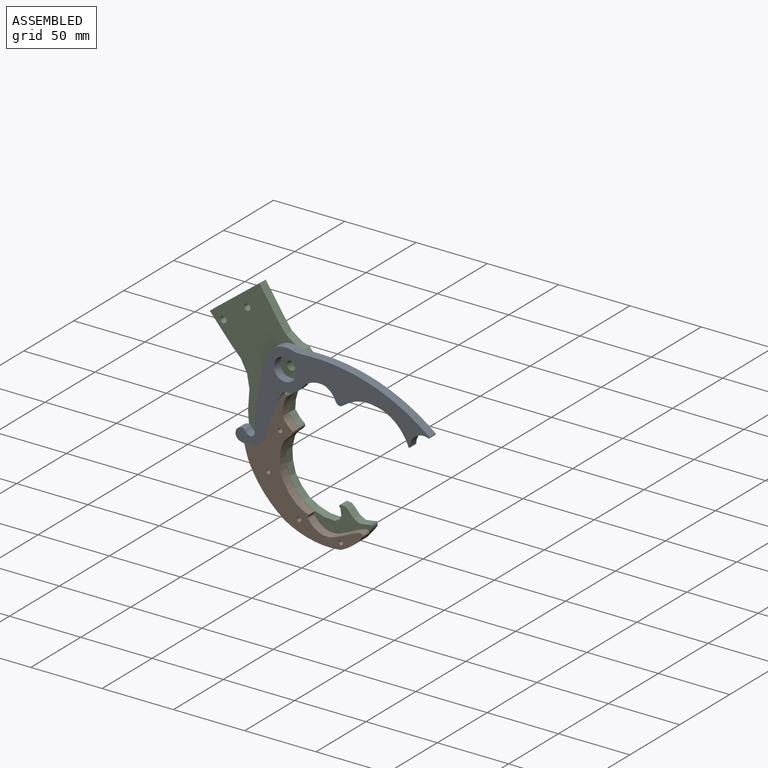
[diagram: assembled view]
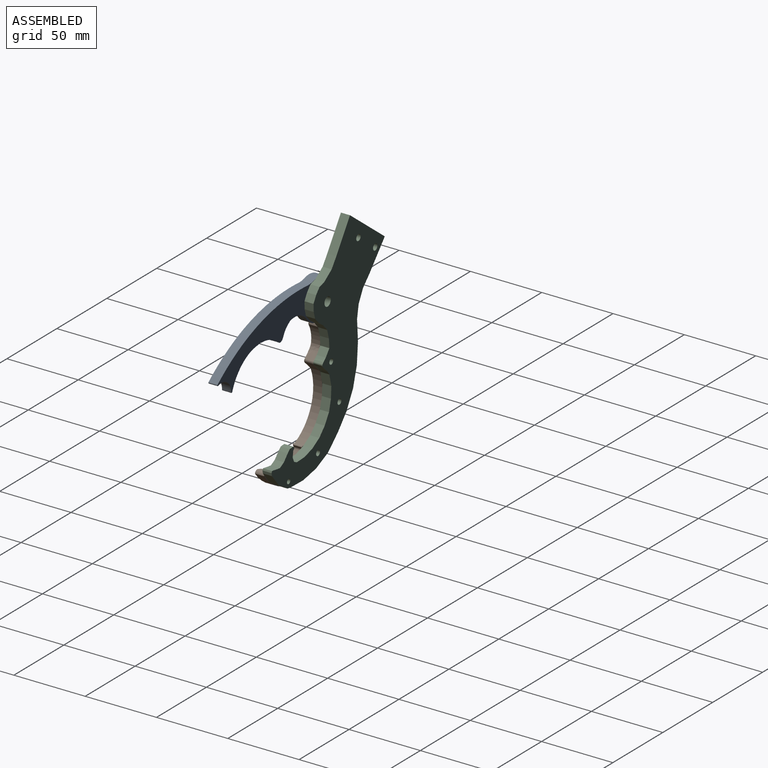
[diagram: assembled view, second angle]
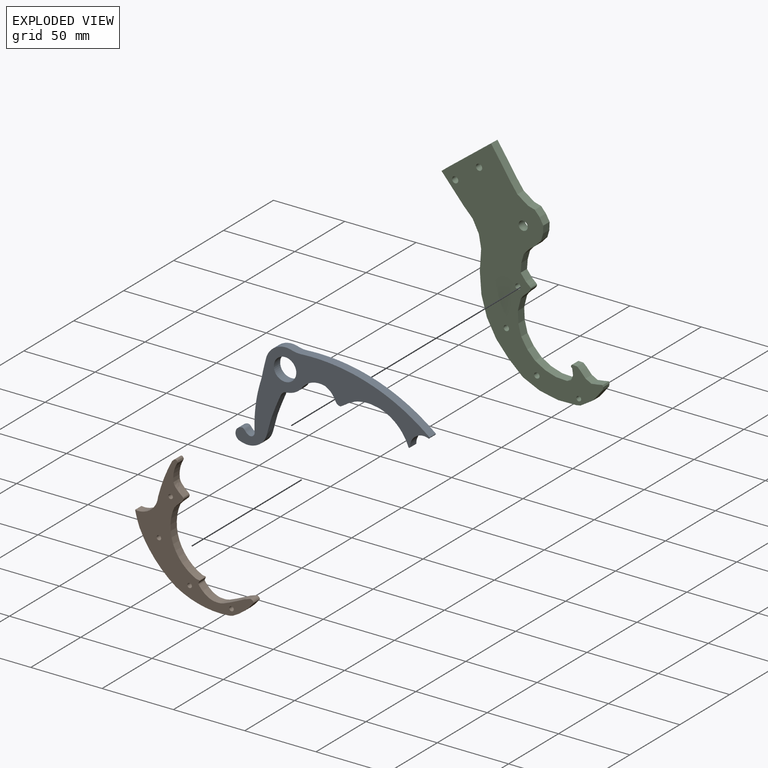
[diagram: exploded view]
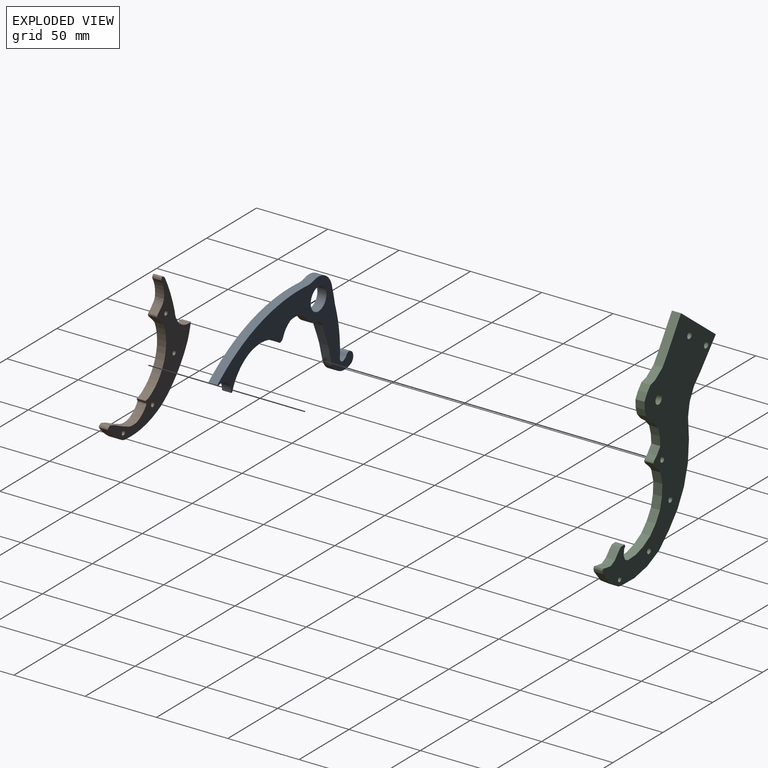
[diagram: exploded view, second angle]
ASSEMBLY  parts=3 mates=2
PART A: 182 faces, bbox 99.9x6.4x117.7 mm
  f0: plane 6.35x0.65mm, normal (0.02,0,1), area 4.1mm2, adj f1,f178,f180,f181
  f1: plane 6.35x0.65mm, normal (-0.12,0,0.99), area 4.1mm2, adj f0,f2,f180,f181
  f2: plane 6.35x0.63mm, normal (-0.25,0,0.97), area 4.2mm2, adj f1,f3,f180,f181
  f3: plane 6.35x0.59mm, normal (-0.4,0,0.92), area 4.1mm2, adj f2,f4,f180,f181
  f4: plane 6.35x0.56mm, normal (-0.51,0,0.86), area 4.1mm2, adj f3,f5,f180,f181
  f5: plane 6.35x0.51mm, normal (-0.62,0,0.78), area 4.2mm2, adj f4,f6,f180,f181
  f6: plane 6.35x0.47mm, normal (-0.73,0,0.68), area 4.1mm2, adj f5,f7,f180,f181
  f7: plane 6.35x0.53mm, normal (-0.81,0,0.58), area 4.1mm2, adj f6,f8,f180,f181
  f8: plane 6.35x0.59mm, normal (-0.9,0,0.44), area 4.2mm2, adj f7,f9,f180,f181
  f9: plane 6.35x0.6mm, normal (-0.94,0,0.33), area 4.1mm2, adj f8,f10,f180,f181
  f10: plane 6.35x0.63mm, normal (-0.98,0,0.21), area 4.1mm2, adj f9,f11,f180,f181
  f11: plane 6.35x0.65mm, normal (-1,0,0.05), area 4.1mm2, adj f10,f12,f180,f181
  f12: plane 6.35x0.65mm, normal (-1,0,-0.09), area 4.1mm2, adj f11,f13,f180,f181
  f13: plane 6.35x0.63mm, normal (-0.97,0,-0.23), area 4.1mm2, adj f12,f14,f180,f181
  f14: plane 6.35x0.6mm, normal (-0.93,0,-0.37), area 4.1mm2, adj f13,f15,f180,f181
  f15: plane 6.35x0.57mm, normal (-0.88,0,-0.48), area 4.2mm2, adj f14,f16,f180,f181
  f16: plane 6.35x0.51mm, normal (-0.79,0,-0.61), area 4.1mm2, adj f15,f17,f180,f181
  f17: plane 6.35x0.45mm, normal (-0.71,0,-0.71), area 4.1mm2, adj f16,f18,f180,f181
  f18: plane 6.35x0.51mm, normal (-0.43,0,-0.9), area 3.6mm2, adj f17,f19,f180,f181
  f19: plane 6.35x0.54mm, normal (-0.24,0,-0.97), area 3.6mm2, adj f18,f20,f180,f181
  f20: plane 6.35x0.56mm, normal (-0.03,0,-1), area 3.5mm2, adj f19,f21,f180,f181
  f21: plane 6.35x0.56mm, normal (0.16,0,-0.99), area 3.6mm2, adj f20,f22,f180,f181
  f22: plane 6.35x0.74mm, normal (0.18,0,-0.98), area 4.8mm2, adj f21,f23,f180,f181
  f23: plane 6.35x0.75mm, normal (0.1,0,-1), area 4.8mm2, adj f22,f24,f180,f181
  f24: plane 6.35x0.75mm, normal (-0.02,0,-1), area 4.8mm2, adj f23,f25,f180,f181
  f25: plane 6.35x0.75mm, normal (-0.12,0,-0.99), area 4.8mm2, adj f24,f26,f180,f181
  f26: plane 6.35x0.74mm, normal (-0.22,0,-0.98), area 4.8mm2, adj f25,f27,f180,f181
  f27: plane 6.35x0.47mm, normal (-0.39,0,-0.92), area 3.2mm2, adj f26,f28,f180,f181
  f28: plane 6.35x0.42mm, normal (-0.54,0,-0.84), area 3.2mm2, adj f27,f29,f180,f181
  f29: plane 6.35x0.36mm, normal (-0.69,0,-0.72), area 3.2mm2, adj f28,f30,f180,f181
  f30: plane 6.35x0.41mm, normal (-0.8,0,-0.6), area 3.2mm2, adj f29,f31,f180,f181
  f31: plane 6.35x0.45mm, normal (-0.89,0,-0.45), area 3.2mm2, adj f30,f32,f180,f181
  f32: plane 6.35x0.48mm, normal (-0.95,0,-0.3), area 3.2mm2, adj f31,f33,f180,f181
  f33: plane 6.35x0.5mm, normal (-1,0,-0.09), area 3.2mm2, adj f32,f34,f180,f181
  f34: plane 6.35x0.5mm, normal (-1,0,0.06), area 3.2mm2, adj f33,f35,f180,f181
  f35: plane 6.35x0.5mm, normal (-0.97,0,0.24), area 3.3mm2, adj f34,f36,f180,f181
  f36: plane 6.35x0.45mm, normal (-0.92,0,0.4), area 3.1mm2, adj f35,f37,f180,f181
  f37: plane 6.35x0.42mm, normal (-0.83,0,0.56), area 3.2mm2, adj f36,f38,f180,f181
  f38: plane 6.35x0.36mm, normal (-0.72,0,0.69), area 3.2mm2, adj f37,f39,f180,f181
  f39: plane 6.35x2.38mm, normal (-0.72,0,0.69), area 20.9mm2, adj f38,f40,f180,f181
  f40: plane 6.35x2.46mm, normal (-0.74,0,0.67), area 21mm2, adj f39,f41,f180,f181
  f41: plane 6.35x2.52mm, normal (-0.76,0,0.65), area 20.9mm2, adj f40,f42,f180,f181
  f42: plane 6.35x2.59mm, normal (-0.79,0,0.62), area 20.9mm2, adj f41,f43,f180,f181
  f43: plane 6.35x2.67mm, normal (-0.81,0,0.59), area 21mm2, adj f42,f44,f180,f181
  f44: plane 6.35x2.73mm, normal (-0.82,0,0.57), area 21mm2, adj f43,f45,f180,f181
  f45: plane 6.35x2.78mm, normal (-0.84,0,0.54), area 20.9mm2, adj f44,f46,f180,f181
  f46: plane 6.35x2.85mm, normal (-0.86,0,0.51), area 21mm2, adj f45,f47,f180,f181
  f47: plane 6.35x2.9mm, normal (-0.88,0,0.48), area 21mm2, adj f46,f48,f180,f181
  f48: plane 6.35x2.94mm, normal (-0.89,0,0.45), area 20.9mm2, adj f47,f49,f180,f181
  f49: plane 6.35x3mm, normal (-0.91,0,0.42), area 21mm2, adj f48,f50,f180,f181
  f50: plane 6.35x3.79mm, normal (-0.86,0,0.51), area 28mm2, adj f49,f51,f180,f181
  f51: plane 6.35x3.85mm, normal (-0.87,0,0.49), area 28mm2, adj f50,f52,f180,f181
  f52: plane 6.35x3.89mm, normal (-0.88,0,0.47), area 27.9mm2, adj f51,f53,f180,f181
  f53: plane 6.35x1.06mm, normal (-0.89,0,0.45), area 7.5mm2, adj f52,f54,f180,f181
  f54: plane 6.35x1.12mm, normal (-0.93,0,0.38), area 7.6mm2, adj f53,f55,f180,f181
  f55: plane 6.35x1.13mm, normal (-0.95,0,0.3), area 7.5mm2, adj f54,f56,f180,f181
  f56: plane 6.35x1.16mm, normal (-0.98,0,0.22), area 7.6mm2, adj f55,f57,f180,f181
  f57: plane 6.35x1.19mm, normal (-0.99,0,0.13), area 7.6mm2, adj f56,f58,f180,f181
  f58: plane 6.35x1.19mm, normal (-1,0,0.05), area 7.6mm2, adj f57,f59,f180,f181
  f59: plane 6.35x1.19mm, normal (-1,0,-0.03), area 7.6mm2, adj f58,f60,f180,f181
  f60: plane 6.35x1.18mm, normal (-0.99,0,-0.13), area 7.5mm2, adj f59,f61,f180,f181
  f61: plane 6.35x1.18mm, normal (-0.98,0,-0.2), area 7.6mm2, adj f60,f62,f180,f181
  f62: plane 6.35x1.15mm, normal (-0.96,0,-0.28), area 7.6mm2, adj f61,f63,f180,f181
  f63: plane 6.35x1.1mm, normal (-0.93,0,-0.36), area 7.5mm2, adj f62,f64,f180,f181
  f64: plane 6.35x1.07mm, normal (-0.9,0,-0.44), area 7.6mm2, adj f63,f65,f180,f181
  f65: plane 6.35x1.03mm, normal (-0.86,0,-0.52), area 7.6mm2, adj f64,f66,f180,f181
  f66: plane 6.35x0.97mm, normal (-0.81,0,-0.58), area 7.5mm2, adj f65,f67,f180,f181
  f67: plane 6.35x0.92mm, normal (-0.77,0,-0.64), area 7.6mm2, adj f66,f68,f180,f181
  f68: plane 6.35x0.84mm, normal (-0.7,0,-0.71), area 7.5mm2, adj f67,f69,f180,f181
  f69: plane 6.35x0.92mm, normal (-0.64,0,-0.77), area 7.6mm2, adj f68,f70,f180,f181
  f70: plane 6.35x0.97mm, normal (-0.58,0,-0.82), area 7.5mm2, adj f69,f71,f180,f181
  f71: plane 6.35x1.03mm, normal (-0.51,0,-0.86), area 7.6mm2, adj f70,f72,f180,f181
  f72: plane 6.35x1.09mm, normal (-0.43,0,-0.9), area 7.6mm2, adj f71,f73,f180,f181
  f73: plane 6.35x1.28mm, normal (-0.48,0,-0.88), area 9.3mm2, adj f72,f74,f180,f181
  f74: plane 6.35x1.22mm, normal (-0.54,0,-0.84), area 9.2mm2, adj f73,f75,f180,f181
  f75: plane 6.35x1.16mm, normal (-0.61,0,-0.79), area 9.4mm2, adj f74,f76,f180,f181
  f76: plane 6.35x1.09mm, normal (-0.67,0,-0.74), area 9.3mm2, adj f75,f77,f180,f181
  f77: plane 6.35x2.66mm, normal (-0.71,0,-0.71), area 23.8mm2, adj f76,f78,f180,f181
  f78: plane 6.35x2.72mm, normal (-0.69,0,-0.72), area 23.8mm2, adj f77,f79,f180,f181
  f79: plane 6.35x2.79mm, normal (-0.67,0,-0.74), area 23.8mm2, adj f78,f80,f180,f181
  f80: plane 6.35x2.87mm, normal (-0.65,0,-0.76), area 23.9mm2, adj f79,f81,f180,f181
  f81: plane 6.35x2.93mm, normal (-0.62,0,-0.78), area 23.8mm2, adj f80,f82,f180,f181
  f82: plane 6.35x3mm, normal (-0.6,0,-0.8), area 23.8mm2, adj f81,f83,f180,f181
  f83: plane 6.35x3.06mm, normal (-0.58,0,-0.82), area 23.8mm2, adj f82,f84,f180,f181
  f84: plane 6.35x3.11mm, normal (-0.56,0,-0.83), area 23.7mm2, adj f83,f85,f180,f181
  f85: plane 6.35x3.18mm, normal (-0.53,0,-0.85), area 23.8mm2, adj f84,f86,f180,f181
  f86: plane 6.35x3.23mm, normal (-0.51,0,-0.86), area 23.8mm2, adj f85,f87,f180,f181
  f87: plane 6.35x3.29mm, normal (-0.48,0,-0.88), area 23.8mm2, adj f86,f88,f180,f181
  f88: plane 6.35x3.33mm, normal (-0.46,0,-0.89), area 23.8mm2, adj f87,f89,f180,f181
  f89: plane 6.35x3.39mm, normal (-0.43,0,-0.9), area 23.9mm2, adj f88,f90,f180,f181
  f90: plane 6.35x3.42mm, normal (-0.41,0,-0.91), area 23.8mm2, adj f89,f91,f180,f181
  f91: plane 6.35x3.47mm, normal (-0.38,0,-0.93), area 23.8mm2, adj f90,f92,f180,f181
  f92: plane 6.35x3.51mm, normal (-0.35,0,-0.94), area 23.9mm2, adj f91,f93,f180,f181
  f93: plane 6.35x3.54mm, normal (-0.32,0,-0.95), area 23.8mm2, adj f92,f94,f180,f181
  f94: plane 6.35x3.58mm, normal (-0.3,0,-0.95), area 23.8mm2, adj f93,f95,f180,f181
  f95: plane 6.48x6.35mm, normal (-0.26,0,-0.97), area 42.5mm2, adj f94,f96,f180,f181
  f96: plane 6.35x3.67mm, normal (-0.22,0,-0.98), area 23.8mm2, adj f95,f97,f180,f181
  f97: plane 6.35x3.68mm, normal (-0.19,0,-0.98), area 23.8mm2, adj f96,f98,f180,f181
  f98: plane 6.35x3.71mm, normal (-0.16,0,-0.99), area 23.9mm2, adj f97,f99,f180,f181
  f99: plane 6.35x3.71mm, normal (-0.13,0,-0.99), area 23.8mm2, adj f98,f100,f180,f181
  f100: plane 6.35x3.73mm, normal (-0.1,0,-0.99), area 23.8mm2, adj f99,f101,f180,f181
  f101: plane 6.35x3.74mm, normal (-0.07,0,-1), area 23.8mm2, adj f100,f102,f180,f181
  f102: plane 6.35x0.24mm, normal (-0.06,0,-1), area 1.5mm2, adj f101,f103,f180,f181
  f103: plane 6.35x0.23mm, normal (0.37,0,-0.93), area 1.5mm2, adj f102,f104,f180,f181
  f104: plane 6.35x0.17mm, normal (0.71,0,-0.71), area 1.5mm2, adj f103,f105,f180,f181
  f105: plane 6.35x0.21mm, normal (0.92,0,-0.39), area 1.5mm2, adj f104,f106,f180,f181
  f106: plane 6.35x0.24mm, normal (1,0,0), area 1.5mm2, adj f105,f107,f180,f181
  f107: plane 6.35x0.21mm, normal (0.92,0,0.39), area 1.5mm2, adj f106,f108,f180,f181
  f108: plane 6.35x0.17mm, normal (0.71,0,0.71), area 1.5mm2, adj f107,f109,f180,f181
  f109: plane 6.35x0.91mm, normal (0.4,0,0.92), area 6.3mm2, adj f108,f110,f180,f181
  f110: plane 6.35x0.84mm, normal (0.51,0,0.86), area 6.2mm2, adj f109,f111,f180,f181
  f111: plane 6.35x0.8mm, normal (0.58,0,0.81), area 6.2mm2, adj f110,f112,f180,f181
  f112: plane 6.35x0.74mm, normal (0.66,0,0.75), area 6.2mm2, adj f111,f113,f180,f181
  f113: plane 6.35x0.72mm, normal (0.74,0,0.68), area 6.2mm2, adj f112,f114,f180,f181
  f114: plane 6.35x0.78mm, normal (0.8,0,0.6), area 6.2mm2, adj f113,f115,f180,f181
  f115: plane 6.35x0.84mm, normal (0.86,0,0.51), area 6.2mm2, adj f114,f116,f180,f181
  f116: plane 6.35x0.89mm, normal (0.91,0,0.42), area 6.2mm2, adj f115,f117,f180,f181
  f117: plane 6.35x0.94mm, normal (0.95,0,0.32), area 6.3mm2, adj f116,f118,f180,f181
  f118: plane 6.35x0.95mm, normal (0.97,0,0.23), area 6.2mm2, adj f117,f119,f180,f181
  f119: plane 6.35x0.98mm, normal (0.99,0,0.12), area 6.3mm2, adj f118,f120,f180,f181
  f120: plane 6.35x0.98mm, normal (1,0,0.02), area 6.2mm2, adj f119,f121,f180,f181
  f121: plane 6.35x0.98mm, normal (1,0,-0.08), area 6.2mm2, adj f120,f122,f180,f181
  f122: plane 6.35x0.97mm, normal (0.98,0,-0.18), area 6.2mm2, adj f121,f123,f180,f181
  f123: plane 6.35x0.94mm, normal (0.96,0,-0.29), area 6.2mm2, adj f122,f124,f180,f181
  f124: plane 6.35x0.91mm, normal (0.93,0,-0.37), area 6.2mm2, adj f123,f125,f180,f181
  f125: plane 6.35x0.86mm, normal (0.88,0,-0.48), area 6.2mm2, adj f124,f126,f180,f181
  f126: plane 6.35x0.81mm, normal (0.82,0,-0.57), area 6.3mm2, adj f125,f127,f180,f181
  f127: plane 6.35x0.75mm, normal (0.77,0,-0.64), area 6.3mm2, adj f126,f128,f180,f181
  f128: plane 6.35x0.23mm, normal (0.93,0,-0.37), area 1.5mm2, adj f127,f129,f180,f181
  f129: plane 6.35x0.24mm, normal (1,0,0), area 1.5mm2, adj f128,f130,f180,f181
  f130: plane 6.35x0.21mm, normal (0.92,0,0.39), area 1.5mm2, adj f129,f131,f180,f181
  f131: plane 6.35x0.18mm, normal (0.68,0,0.74), area 1.6mm2, adj f130,f132,f180,f181
  f132: plane 6.35x0.24mm, normal (0.3,0,0.95), area 1.6mm2, adj f131,f133,f180,f181
  f133: plane 6.35x0.24mm, normal (-0.06,0,1), area 1.5mm2, adj f132,f134,f180,f181
  f134: plane 6.35x1.63mm, normal (-0.43,0,0.9), area 11.5mm2, adj f133,f135,f180,f181
  f135: plane 6.35x1.66mm, normal (-0.39,0,0.92), area 11.4mm2, adj f134,f136,f180,f181
  f136: plane 6.35x1.72mm, normal (-0.33,0,0.94), area 11.6mm2, adj f135,f137,f180,f181
  f137: plane 6.35x1.73mm, normal (-0.27,0,0.96), area 11.4mm2, adj f136,f138,f180,f181
  f138: plane 6.35x1.77mm, normal (-0.22,0,0.97), area 11.5mm2, adj f137,f139,f180,f181
  f139: plane 6.35x1.78mm, normal (-0.16,0,0.99), area 11.4mm2, adj f138,f140,f180,f181
  f140: plane 6.35x1.8mm, normal (-0.11,0,0.99), area 11.5mm2, adj f139,f141,f180,f181
  f141: plane 6.35x1.81mm, normal (-0.05,0,1), area 11.5mm2, adj f140,f142,f180,f181
  f142: plane 6.35x1.81mm, normal (0.01,0,1), area 11.5mm2, adj f141,f143,f180,f181
  f143: plane 6.35x1.81mm, normal (0.07,0,1), area 11.5mm2, adj f142,f144,f180,f181
  f144: plane 6.35x1.8mm, normal (0.12,0,0.99), area 11.5mm2, adj f143,f145,f180,f181
  f145: plane 6.35x1.78mm, normal (0.18,0,0.98), area 11.5mm2, adj f144,f146,f180,f181
  f146: plane 6.35x2.72mm, normal (0.26,0,0.97), area 17.9mm2, adj f145,f147,f180,f181
  f147: plane 6.35x1.69mm, normal (0.34,0,0.94), area 11.4mm2, adj f146,f148,f180,f181
  f148: plane 6.35x1.67mm, normal (0.4,0,0.92), area 11.6mm2, adj f147,f149,f180,f181
  f149: plane 6.35x1.61mm, normal (0.45,0,0.89), area 11.5mm2, adj f148,f150,f180,f181
  f150: extruded ~29.66x23.34mm, area 273.4mm2, adj f149,f151,f180,f181
  f151: plane 6.35x1.13mm, normal (0.47,0,0.88), area 8.1mm2, adj f150,f152,f180,f181
  f152: plane 6.35x1.09mm, normal (0.54,0,0.84), area 8.2mm2, adj f151,f153,f180,f181
  f153: plane 6.35x1.01mm, normal (0.61,0,0.8), area 8.1mm2, adj f152,f154,f180,f181
  f154: plane 6.35x0.95mm, normal (0.68,0,0.74), area 8.2mm2, adj f153,f155,f180,f181
  f155: plane 6.35x0.94mm, normal (0.73,0,0.68), area 8.1mm2, adj f154,f156,f180,f181
  f156: plane 6.35x1mm, normal (0.78,0,0.63), area 8.1mm2, adj f155,f157,f180,f181
  f157: plane 6.35x1.07mm, normal (0.83,0,0.55), area 8.2mm2, adj f156,f158,f180,f181
  f158: plane 6.35x1.13mm, normal (0.88,0,0.48), area 8.2mm2, adj f157,f159,f180,f181
  f159: plane 6.35x1.16mm, normal (0.91,0,0.4), area 8.1mm2, adj f158,f160,f180,f181
  f160: plane 6.35x1.22mm, normal (0.95,0,0.33), area 8.2mm2, adj f159,f161,f180,f181
  f161: plane 6.35x1.24mm, normal (0.97,0,0.25), area 8.1mm2, adj f160,f162,f180,f181
  f162: plane 6.35x1.27mm, normal (0.98,0,0.18), area 8.2mm2, adj f161,f163,f180,f181
  f163: plane 6.35x1.27mm, normal (1,0,0.08), area 8.1mm2, adj f162,f164,f180,f181
  f164: plane 6.35x1.28mm, normal (1,0,0), area 8.1mm2, adj f163,f165,f180,f181
  f165: plane 6.35x1.18mm, normal (0.99,0,-0.1), area 7.5mm2, adj f164,f166,f180,f181
  f166: plane 6.35x1.16mm, normal (1,0,-0.03), area 7.4mm2, adj f165,f167,f180,f181
  f167: plane 6.35x1.18mm, normal (1,0,0.05), area 7.5mm2, adj f166,f168,f180,f181
  f168: plane 6.35x1.16mm, normal (0.99,0,0.14), area 7.5mm2, adj f167,f169,f180,f181
  f169: plane 6.35x1.13mm, normal (0.97,0,0.23), area 7.4mm2, adj f168,f170,f180,f181
  f170: plane 6.35x1.12mm, normal (0.95,0,0.3), area 7.4mm2, adj f169,f171,f180,f181
  f171: plane 6.35x1.09mm, normal (0.93,0,0.37), area 7.4mm2, adj f170,f172,f180,f181
  f172: plane 6.35x1.06mm, normal (0.89,0,0.46), area 7.5mm2, adj f171,f173,f180,f181
  f173: plane 6.35x1mm, normal (0.86,0,0.52), area 7.4mm2, adj f172,f174,f180,f181
  f174: plane 6.35x0.94mm, normal (0.8,0,0.6), area 7.5mm2, adj f173,f175,f180,f181
  f175: plane 6.35x0.81mm, normal (0.85,0,0.52), area 6.1mm2, adj f174,f176,f180,f181
  f176: plane 6.35x0.68mm, normal (0.68,0,0.73), area 5.9mm2, adj f175,f177,f180,f181
  f177: extruded ~51.22x13.07mm, area 372.6mm2, adj f176,f178,f180,f181
  f178: plane 6.35x0.63mm, normal (0.16,0,0.99), area 4.1mm2, adj f0,f177,f180,f181
  f179: cylinder r=7.87mm len=15.74mm, axis (0,1,0), area 314.1mm2, adj f180,f181
  f180: plane 117.73x99.89mm, normal (0,-1,0), area 2330.8mm2, adj f0,f1,f2,f3,f4,f5,f6,f7
  f181: plane 117.73x99.89mm, normal (0,1,0), area 2330.8mm2, adj f0,f1,f2,f3,f4,f5,f6,f7
PART B: 26 faces, bbox 92.7x6.4x60.3 mm
  f0: plane 6.35x1.36mm, normal (-0.6,0,-0.8), area 10.8mm2, adj f1,f2,f3,f24
  f1: plane 92.7x60.34mm, normal (0,-1,0), area 1620.4mm2, adj f0,f3,f4,f5,f6,f7,f8,f9
  f2: plane 92.7x60.34mm, normal (0,1,0), area 1620.4mm2, adj f0,f3,f4,f5,f6,f7,f8,f9
  f3: cylinder r=31.77mm len=16.43mm, axis (0,1,0), area 105.6mm2, adj f0,f1,f2,f20
  f4: cylinder r=2.38mm len=6.35mm, axis (0,1,0), area 21.4mm2, adj f1,f2,f5,f21
  f5: cylinder r=39.83mm len=18.42mm, axis (0,1,0), area 119.3mm2, adj f1,f2,f4,f6
  f6: cylinder r=11.3mm len=6.35mm, axis (0,1,0), area 18mm2, adj f1,f2,f5,f7
  f7: cylinder r=61.46mm len=33.43mm, axis (0,1,0), area 248.5mm2, adj f1,f2,f6,f8
  f8: cylinder r=76.81mm len=39.28mm, axis (0,1,0), area 254.8mm2, adj f1,f2,f7,f9
  f9: cylinder r=83.67mm len=9.42mm, axis (0,1,0), area 69.9mm2, adj f1,f2,f8,f10
  f10: cylinder r=13.77mm len=6.35mm, axis (0,1,0), area 40.5mm2, adj f1,f2,f9,f11
  f11: cylinder r=14.07mm len=15.62mm, axis (0,1,0), area 105.3mm2, adj f1,f2,f10,f12
  f12: cylinder r=112.91mm len=25.22mm, axis (0,1,0), area 171.8mm2, adj f1,f2,f11,f13
  f13: cylinder r=8.93mm len=6.35mm, axis (0,1,0), area 13.3mm2, adj f1,f2,f12,f14
  f14: extruded ~6.35x2.73mm, area 22.2mm2, adj f1,f2,f13,f15
  f15: cylinder r=19.05mm len=11.31mm, axis (0,1,0), area 84.8mm2, adj f1,f2,f14,f16
  f16: extruded ~11.58x11.43mm, area 134mm2, adj f1,f2,f15,f20
  f17: cylinder r=1.59mm len=6.35mm, axis (0,1,0), area 63.3mm2, adj f1,f2
  f18: cylinder r=1.59mm len=6.35mm, axis (0,1,0), area 63.3mm2, adj f1,f2
  f19: cylinder r=1.59mm len=6.35mm, axis (0,1,0), area 63.3mm2, adj f1,f2
  f20: cylinder r=31.09mm len=22.7mm, axis (0,1,0), area 203.8mm2, adj f1,f2,f3,f16
  f21: extruded ~23.41x13.49mm, area 174mm2, adj f1,f2,f4,f22
  f22: extruded ~13.05x6.35mm, area 85.3mm2, adj f1,f2,f21,f23
  f23: extruded ~6.35x0.89mm, area 7.3mm2, adj f1,f2,f22,f24
  f24: extruded ~6.35x1.4mm, area 13.5mm2, adj f0,f1,f2,f23
  f25: cylinder r=1.59mm len=6.35mm, axis (0,-1,0), area 63.3mm2, adj f1,f2
PART C: 64 faces, bbox 157.4x6.4x90.3 mm
  f0: plane 8.96x6.35mm, normal (-0.35,0,0.94), area 60.7mm2, adj f1,f60,f62,f63
  f1: plane 8.96x6.35mm, normal (-0.06,0,1), area 57mm2, adj f0,f2,f62,f63
  f2: plane 23.54x6.35mm, normal (-0.12,0,0.99), area 150.5mm2, adj f1,f3,f62,f63
  f3: plane 43.17x7.84mm, normal (-0.98,0,-0.18), area 278.6mm2, adj f2,f4,f62,f63
  f4: plane 24.1x6.35mm, normal (0.25,0,-0.97), area 158mm2, adj f3,f5,f62,f63
  f5: plane 7.84x6.35mm, normal (0.21,0,-0.98), area 50.9mm2, adj f4,f6,f62,f63
  f6: plane 8.96x6.35mm, normal (-0.12,0,-0.99), area 57.3mm2, adj f5,f7,f62,f63
  f7: plane 6.35x4.48mm, normal (-0.45,0,-0.89), area 31.8mm2, adj f6,f8,f62,f63
  f8: plane 6.35x5.04mm, normal (0.11,0,-0.99), area 32.2mm2, adj f7,f9,f62,f63
  f9: plane 6.35x5.04mm, normal (0.32,0,-0.95), area 33.7mm2, adj f8,f10,f62,f63
  f10: plane 6.35x3.95mm, normal (0.76,0,-0.65), area 32.9mm2, adj f9,f11,f62,f63
  f11: plane 6.35x4.48mm, normal (0.89,0,-0.45), area 31.8mm2, adj f10,f12,f62,f63
  f12: plane 6.35x5.6mm, normal (1,0,0), area 35.5mm2, adj f11,f13,f62,f63
  f13: plane 6.35x5.04mm, normal (0.98,0,0.22), area 32.8mm2, adj f12,f14,f62,f63
  f14: plane 6.35x6.16mm, normal (1,0,0), area 39.1mm2, adj f13,f15,f62,f63
  f15: plane 6.35x5.63mm, normal (0.9,0,-0.45), area 39.9mm2, adj f14,f16,f62,f63
  f16: plane 6.35x5.04mm, normal (0.79,0,-0.61), area 40.5mm2, adj f15,f17,f62,f63
  f17: plane 6.35x5.76mm, normal (0.18,0,-0.98), area 37.2mm2, adj f16,f18,f62,f63
  f18: extruded ~11.35x6.35mm, area 103mm2, adj f17,f19,f62,f63
  f19: plane 7.31x6.35mm, normal (0.88,0,-0.47), area 52.7mm2, adj f18,f20,f62,f63
  f20: plane 6.35x5.6mm, normal (0.71,0,-0.71), area 50.3mm2, adj f19,f21,f62,f63
  f21: plane 6.72x6.35mm, normal (0.55,0,-0.83), area 51.3mm2, adj f20,f22,f62,f63
  f22: plane 7.84x6.35mm, normal (0.27,0,-0.96), area 51.8mm2, adj f21,f23,f62,f63
  f23: plane 7.84x6.35mm, normal (0.07,0,-1), area 49.9mm2, adj f22,f24,f62,f63
  f24: plane 7.84x6.35mm, normal (-0.21,0,-0.98), area 50.9mm2, adj f23,f25,f62,f63
  f25: plane 7.28x6.35mm, normal (-0.42,0,-0.91), area 50.9mm2, adj f24,f26,f62,f63
  f26: plane 6.35x6.16mm, normal (-0.63,0,-0.77), area 50.5mm2, adj f25,f27,f62,f63
  f27: plane 6.35x2.8mm, normal (-0.93,0,-0.37), area 19.1mm2, adj f26,f28,f62,f63
  f28: plane 6.35x3.36mm, normal (-0.95,0,0.32), area 22.5mm2, adj f27,f29,f62,f63
  f29: plane 6.35x3.36mm, normal (-0.64,0,0.76), area 27.9mm2, adj f28,f30,f62,f63
  f30: plane 6.35x1.12mm, normal (0,0,1), area 7.1mm2, adj f29,f31,f62,f63
  f31: plane 6.35x0.56mm, normal (-0.71,0,0.71), area 5mm2, adj f30,f32,f62,f63
  f32: plane 6.35x1.12mm, normal (-1,0,0), area 7.1mm2, adj f31,f33,f62,f63
  f33: plane 6.35x2.8mm, normal (-0.62,0,-0.78), area 22.8mm2, adj f32,f34,f62,f63
  f34: plane 6.35x2.8mm, normal (0,0,-1), area 17.8mm2, adj f33,f35,f62,f63
  f35: plane 6.35x5.63mm, normal (0.1,0,-1), area 35.9mm2, adj f34,f36,f62,f63
  f36: plane 6.35x4.48mm, normal (-0.24,0,-0.97), area 29.3mm2, adj f35,f37,f62,f63
  f37: plane 6.35x3.36mm, normal (-0.77,0,-0.64), area 27.8mm2, adj f36,f38,f62,f63
  f38: plane 6.35x2.24mm, normal (-0.8,0,-0.6), area 17.8mm2, adj f37,f39,f62,f63
  f39: plane 6.35x0.56mm, normal (-0.71,0,-0.71), area 5mm2, adj f38,f40,f62,f63
  f40: plane 6.35x1.12mm, normal (0.45,0,-0.89), area 7.9mm2, adj f39,f41,f62,f63
  f41: plane 6.35x1.68mm, normal (0.83,0,-0.55), area 12.8mm2, adj f40,f42,f62,f63
  f42: plane 10.67x6.35mm, normal (1,0,-0.05), area 67.8mm2, adj f41,f43,f62,f63
  f43: plane 10.08x6.35mm, normal (0.96,0,0.27), area 66.4mm2, adj f42,f44,f62,f63
  f44: plane 6.35x2.24mm, normal (0.8,0,0.6), area 17.8mm2, adj f43,f45,f62,f63
  f45: plane 9.52x8.96mm, normal (0.69,0,0.73), area 83mm2, adj f44,f46,f62,f63
  f46: plane 11.23x6.75mm, normal (0.52,0,0.86), area 83.2mm2, adj f45,f47,f62,f63
  f47: plane 12.31x6.35mm, normal (0.3,0,0.95), area 82.1mm2, adj f46,f48,f62,f63
  f48: plane 13.43x6.35mm, normal (0,0,1), area 85.3mm2, adj f47,f49,f62,f63
  f49: plane 13.43x6.35mm, normal (-0.12,0,0.99), area 86mm2, adj f48,f50,f62,f63
  f50: plane 12.87x6.35mm, normal (-0.33,0,0.94), area 86.6mm2, adj f49,f51,f62,f63
  f51: plane 11.79x7.31mm, normal (-0.53,0,0.85), area 88.1mm2, adj f50,f52,f62,f63
  f52: plane 10.64x10.08mm, normal (-0.69,0,0.73), area 93mm2, adj f51,f53,f62,f63
  f53: plane 11.23x8.96mm, normal (-0.78,0,0.62), area 91.2mm2, adj f52,f60,f62,f63
  f54: cylinder r=2.18mm len=6.35mm, axis (0,1,0), area 87.2mm2, adj f62,f63
  f55: cylinder r=1.65mm len=6.35mm, axis (0,1,0), area 65.9mm2, adj f62,f63
  f56: cylinder r=1.91mm len=6.35mm, axis (0,1,0), area 76mm2, adj f62,f63
  f57: cylinder r=1.91mm len=6.35mm, axis (0,1,0), area 76mm2, adj f62,f63
  f58: cylinder r=1.91mm len=6.35mm, axis (0,1,0), area 76mm2, adj f62,f63
  f59: cylinder r=3.17mm len=6.35mm, axis (0,1,0), area 126.7mm2, adj f62,f63
  f60: plane 7.28x6.35mm, normal (-0.61,0,0.79), area 58.3mm2, adj f0,f53,f62,f63
  f61: cylinder r=2.18mm len=6.35mm, axis (0,1,0), area 87.2mm2, adj f62,f63
  f62: plane 157.39x90.25mm, normal (0,-1,0), area 5104.8mm2, adj f0,f1,f2,f3,f4,f5,f6,f7
  f63: plane 157.39x90.25mm, normal (0,1,0), area 5104.8mm2, adj f0,f1,f2,f3,f4,f5,f6,f7
PLACE A rot(axis=(-0.93,0,0.36),180deg) t=(-154.76,-73.8,-34.69)mm
PLACE B rot(axis=(-0.93,0,0.36),180deg) t=(-165.95,-73.8,-75.82)mm
PLACE C rot(axis=(0.93,0,-0.36),180deg) t=(-180.4,-67.45,-43.24)mm
MATE fastened C.f59 <-> A.f179  axis (0,-1,0) through (-180.09,-67.45,-8.32)mm
MATE fastened B.f18 <-> C.f57  axis (0,1,0) through (-191.9,-67.45,-76.32)mm
